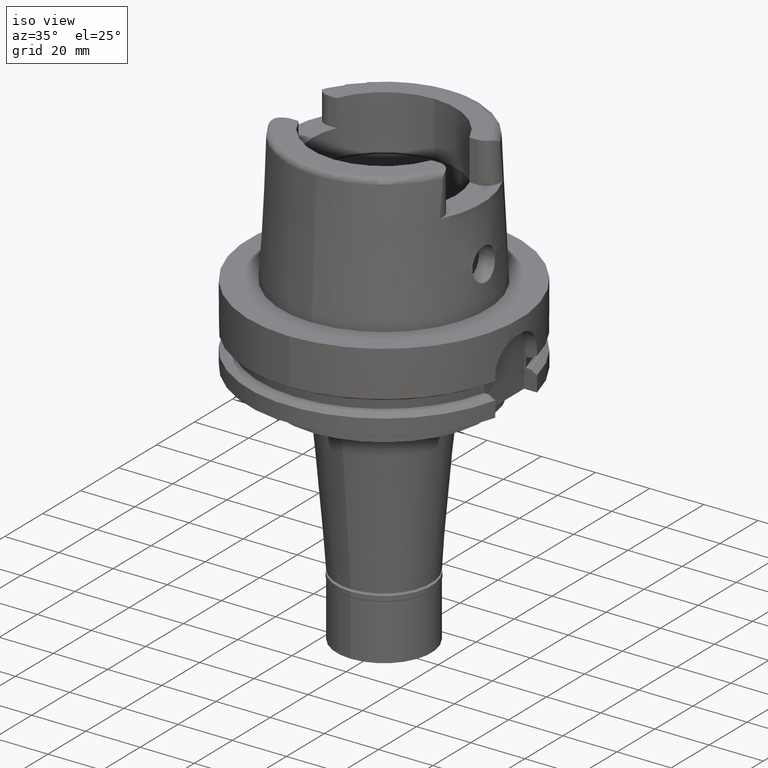
[diagram: clean part render]
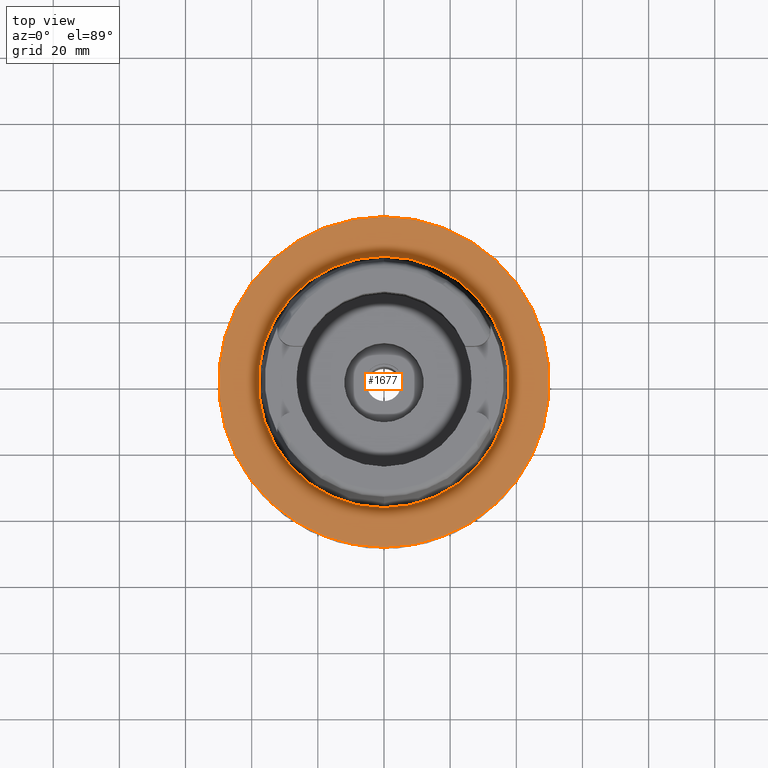
[diagram: tour spotlight — one face highlighted and labeled with its STEP entity id]
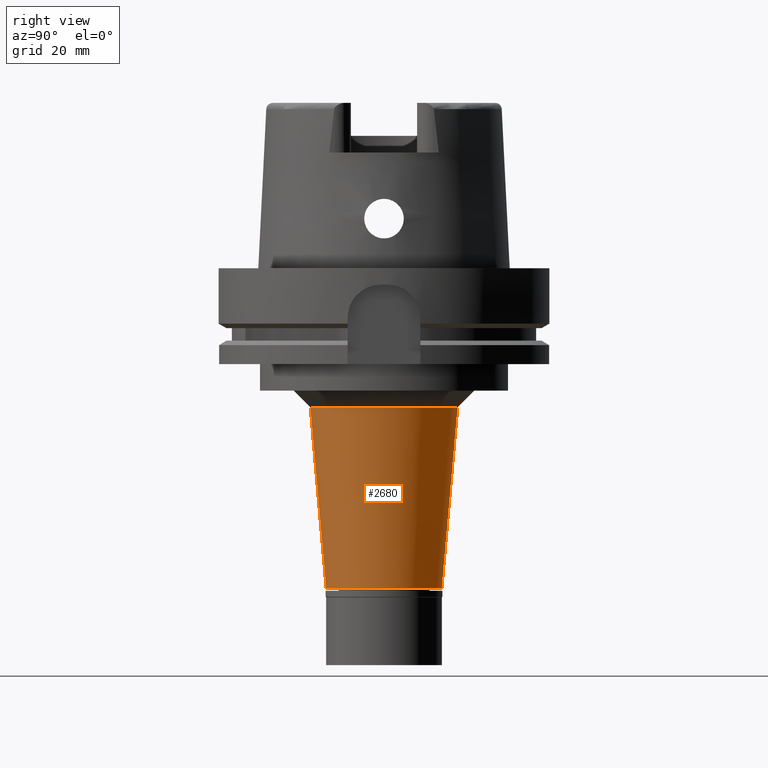
[diagram: tour spotlight — one face highlighted and labeled with its STEP entity id]
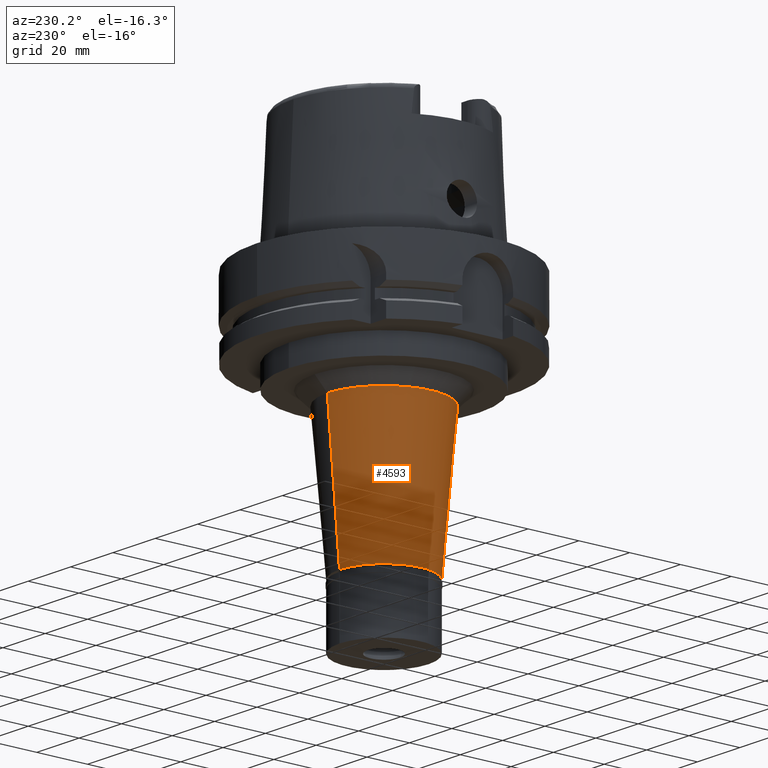
[diagram: tour spotlight — one face highlighted and labeled with its STEP entity id]
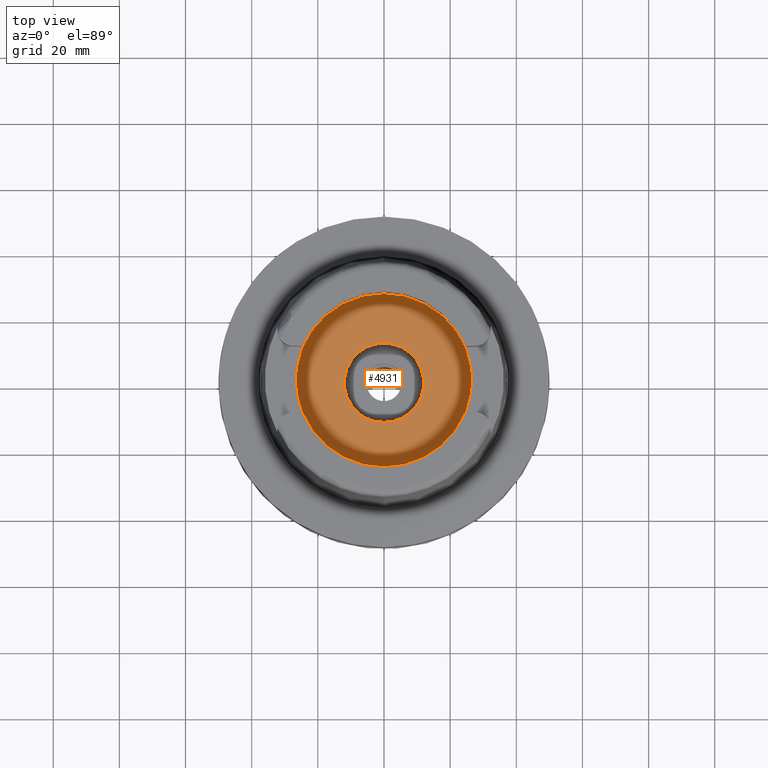
[diagram: tour spotlight — one face highlighted and labeled with its STEP entity id]
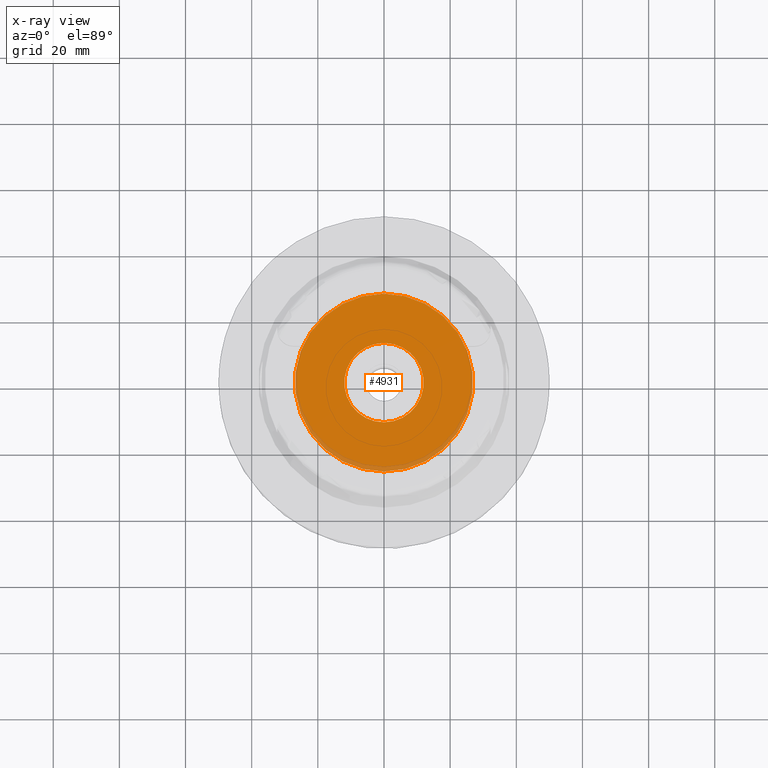
[diagram: x-ray of the same camera — body ghosted, this tour face saturated]
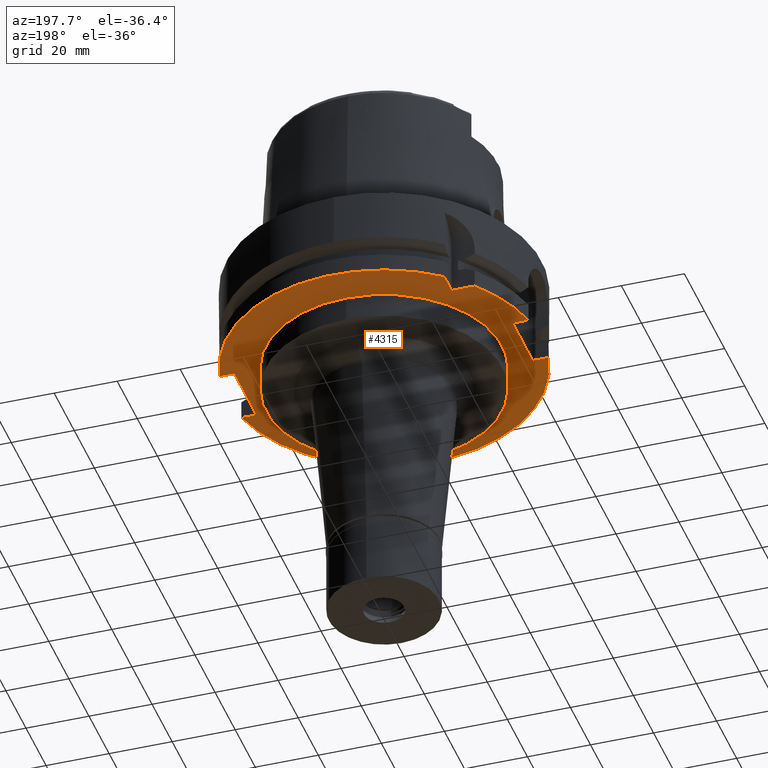
[diagram: tour spotlight — one face highlighted and labeled with its STEP entity id]
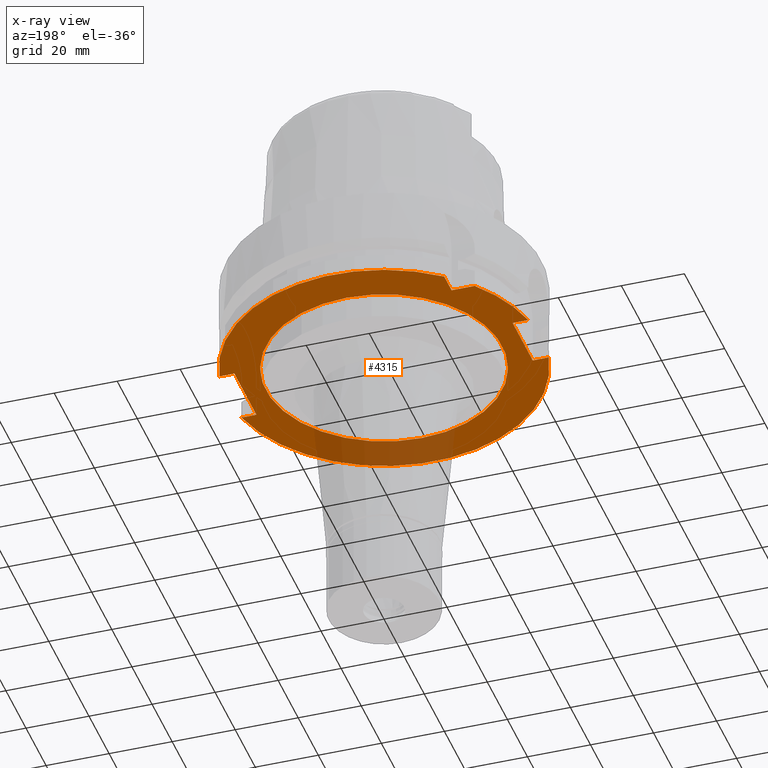
[diagram: x-ray of the same camera — body ghosted, this tour face saturated]
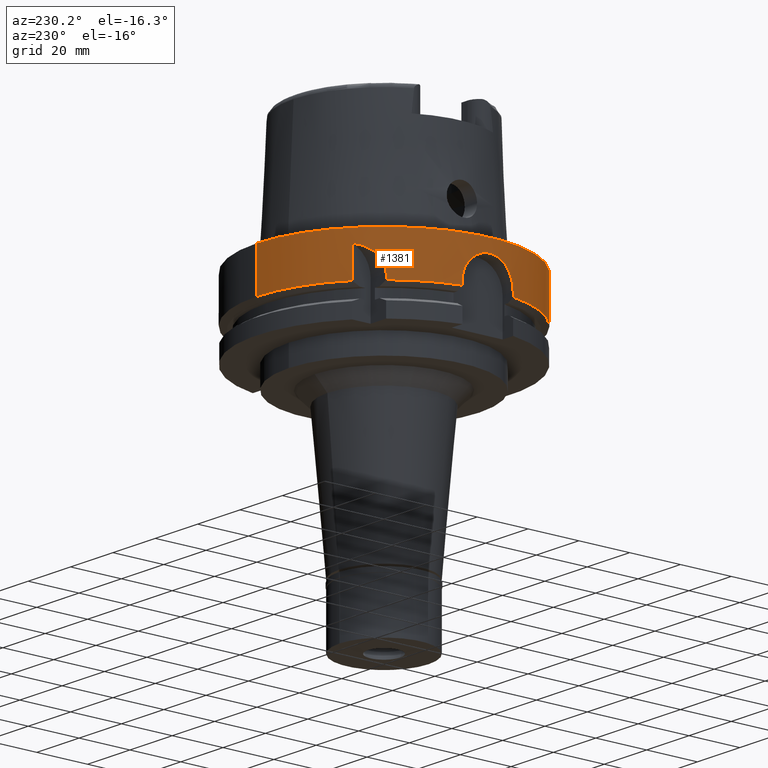
[diagram: tour spotlight — one face highlighted and labeled with its STEP entity id]
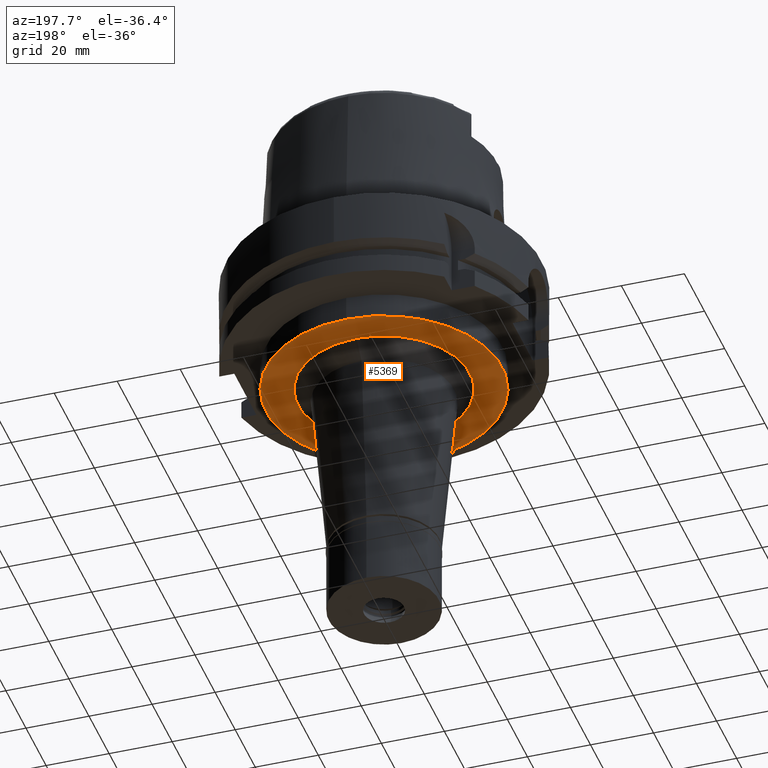
[diagram: tour spotlight — one face highlighted and labeled with its STEP entity id]
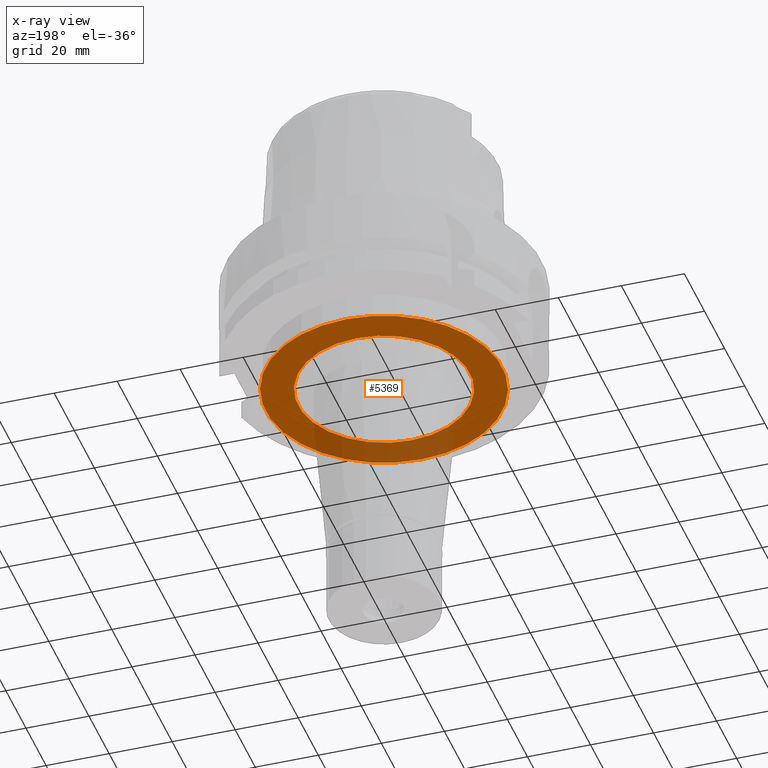
[diagram: x-ray of the same camera — body ghosted, this tour face saturated]
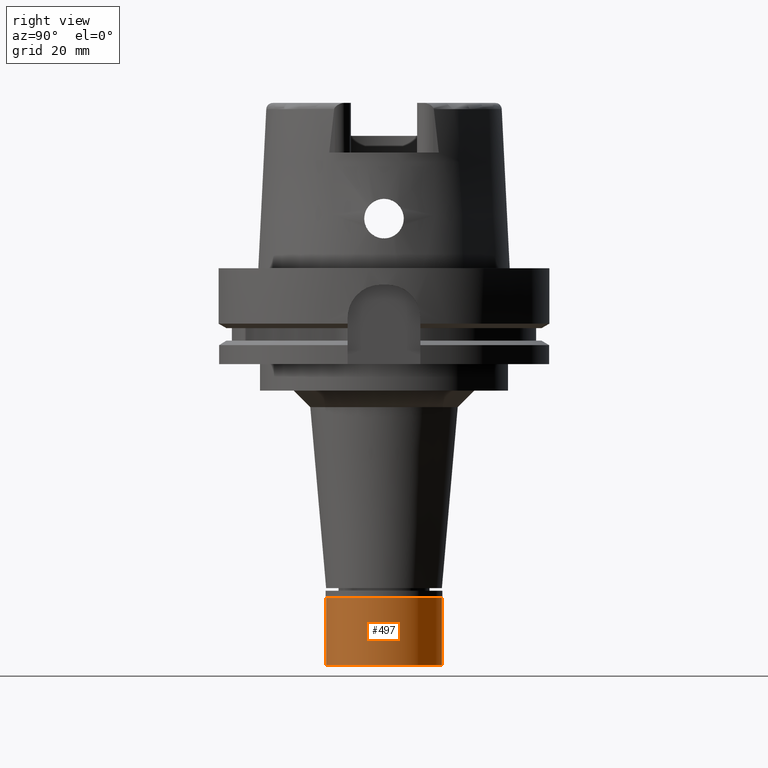
[diagram: tour spotlight — one face highlighted and labeled with its STEP entity id]
A machine part: a face-by-face anatomy tour. The part has 126 B-rep faces; the first image is the clean iso view, then the 8 largest visible faces are spotlighted one at a time (largest first), each with its STEP entity span.

Face 1 — top view, entity #1677. In plain terms, the highlighted planar face has unit normal (0, 0, 1).
Definition (entity closure, byte-faithful):
#257 = DIRECTION ( 'NONE',  ( 0.0000000000000000000, 0.0000000000000000000, 1.000000000000000000 ) ) ;
#283 = EDGE_CURVE ( 'NONE', #4401, #2018, #5490, .T. ) ;
#289 = CARTESIAN_POINT ( 'NONE',  ( 0.0000000000000000000, 0.0000000000000000000, 1.136868377215999875E-13 ) ) ;
#626 = EDGE_CURVE ( 'NONE', #3488, #3396, #2352, .T. ) ;
#937 = FACE_OUTER_BOUND ( 'NONE', #4064, .T. ) ;
#961 = DIRECTION ( 'NONE',  ( 1.000000000000000000, 0.0000000000000000000, 0.0000000000000000000 ) ) ;
#1001 = AXIS2_PLACEMENT_3D ( 'NONE', #5105, #5131, #4624 ) ;
#1068 = EDGE_CURVE ( 'NONE', #3396, #3488, #1793, .T. ) ;
#1311 = CARTESIAN_POINT ( 'NONE',  ( 0.0000000000000000000, -50.00000000000000000, 1.136868377215999875E-13 ) ) ;
#1383 = CIRCLE ( 'NONE', #2471, 38.00001658251999714 ) ;
#1461 = ORIENTED_EDGE ( 'NONE', *, *, #1068, .F. ) ;
#1502 = EDGE_LOOP ( 'NONE', ( #1982, #4262 ) ) ;
#1539 = CARTESIAN_POINT ( 'NONE',  ( 0.0000000000000000000, 38.00001658251999714, 1.023181539494999863E-12 ) ) ;
#1619 = CARTESIAN_POINT ( 'NONE',  ( 0.0000000000000000000, 0.0000000000000000000, 1.136868377215999875E-13 ) ) ;
#1677 = ADVANCED_FACE ( 'NONE', ( #937, #2659 ), #5225, .T. ) ;
#1793 = CIRCLE ( 'NONE', #5521, 50.00000000000000000 ) ;
#1982 = ORIENTED_EDGE ( 'NONE', *, *, #283, .F. ) ;
#2015 = DIRECTION ( 'NONE',  ( 0.0000000000000000000, 0.0000000000000000000, -1.000000000000000000 ) ) ;
#2018 = VERTEX_POINT ( 'NONE', #4912 ) ;
#2167 = AXIS2_PLACEMENT_3D ( 'NONE', #3985, #4381, #961 ) ;
#2352 = CIRCLE ( 'NONE', #3602, 50.00000000000000000 ) ;
#2471 = AXIS2_PLACEMENT_3D ( 'NONE', #4042, #257, #4070 ) ;
#2531 = DIRECTION ( 'NONE',  ( 0.0000000000000000000, 0.0000000000000000000, -1.000000000000000000 ) ) ;
#2659 = FACE_BOUND ( 'NONE', #1502, .T. ) ;
#2850 = DIRECTION ( 'NONE',  ( 0.0000000000000000000, 1.000000000000000000, 0.0000000000000000000 ) ) ;
#3396 = VERTEX_POINT ( 'NONE', #5452 ) ;
#3488 = VERTEX_POINT ( 'NONE', #1311 ) ;
#3602 = AXIS2_PLACEMENT_3D ( 'NONE', #289, #2015, #3718 ) ;
#3718 = DIRECTION ( 'NONE',  ( 0.0000000000000000000, -1.000000000000000000, 0.0000000000000000000 ) ) ;
#3985 = CARTESIAN_POINT ( 'NONE',  ( 0.0000000000000000000, 0.0000000000000000000, 1.421085471519999843E-14 ) ) ;
#4042 = CARTESIAN_POINT ( 'NONE',  ( 0.0000000000000000000, 0.0000000000000000000, 1.023181539494999863E-12 ) ) ;
#4064 = EDGE_LOOP ( 'NONE', ( #1461, #4696 ) ) ;
#4070 = DIRECTION ( 'NONE',  ( 0.0000000000000000000, -1.000000000000000000, 0.0000000000000000000 ) ) ;
#4262 = ORIENTED_EDGE ( 'NONE', *, *, #4726, .F. ) ;
#4381 = DIRECTION ( 'NONE',  ( 0.0000000000000000000, 0.0000000000000000000, 1.000000000000000000 ) ) ;
#4401 = VERTEX_POINT ( 'NONE', #1539 ) ;
#4624 = DIRECTION ( 'NONE',  ( 0.0000000000000000000, 1.000000000000000000, 0.0000000000000000000 ) ) ;
#4696 = ORIENTED_EDGE ( 'NONE', *, *, #626, .F. ) ;
#4726 = EDGE_CURVE ( 'NONE', #2018, #4401, #1383, .T. ) ;
#4912 = CARTESIAN_POINT ( 'NONE',  ( 0.0000000000000000000, -38.00001658251999714, 6.892264536873000076E-13 ) ) ;
#5105 = CARTESIAN_POINT ( 'NONE',  ( 0.0000000000000000000, 0.0000000000000000000, 1.023181539494999863E-12 ) ) ;
#5131 = DIRECTION ( 'NONE',  ( 0.0000000000000000000, 0.0000000000000000000, 1.000000000000000000 ) ) ;
#5225 = PLANE ( 'NONE',  #2167 ) ;
#5452 = CARTESIAN_POINT ( 'NONE',  ( 0.0000000000000000000, 50.00000000000000000, 8.052817671947998165E-14 ) ) ;
#5490 = CIRCLE ( 'NONE', #1001, 38.00001658251999714 ) ;
#5521 = AXIS2_PLACEMENT_3D ( 'NONE', #1619, #2531, #2850 ) ;

Face 2 — right view, entity #2680. In plain terms, the highlighted conical surface has half-angle 5 deg.
Definition (entity closure, byte-faithful):
#376 = DIRECTION ( 'NONE',  ( 0.0000000000000000000, 0.0000000000000000000, 1.000000000000000000 ) ) ;
#675 = VERTEX_POINT ( 'NONE', #3279 ) ;
#709 = ORIENTED_EDGE ( 'NONE', *, *, #3049, .F. ) ;
#775 = AXIS2_PLACEMENT_3D ( 'NONE', #3501, #2644, #4335 ) ;
#839 = LINE ( 'NONE', #2553, #953 ) ;
#953 = VECTOR ( 'NONE', #4249, 1000.000000000000000 ) ;
#1211 = CARTESIAN_POINT ( 'NONE',  ( 0.0000000000000000000, -22.28562989487000223, -42.00000000000000000 ) ) ;
#1463 = VERTEX_POINT ( 'NONE', #1211 ) ;
#1617 = VERTEX_POINT ( 'NONE', #5252 ) ;
#1771 = CARTESIAN_POINT ( 'NONE',  ( 0.0000000000000000000, -22.28562989487000223, -42.00000000000000000 ) ) ;
#2037 = AXIS2_PLACEMENT_3D ( 'NONE', #4996, #376, #4115 ) ;
#2236 = VERTEX_POINT ( 'NONE', #3403 ) ;
#2296 = VECTOR ( 'NONE', #3851, 1000.000000000000000 ) ;
#2484 = CIRCLE ( 'NONE', #775, 22.28562989486000134 ) ;
#2525 = DIRECTION ( 'NONE',  ( 0.0000000000000000000, 1.000000000000000000, 0.0000000000000000000 ) ) ;
#2553 = CARTESIAN_POINT ( 'NONE',  ( 0.0000000000000000000, 22.28562989487000223, -42.00000000000000000 ) ) ;
#2644 = DIRECTION ( 'NONE',  ( 0.0000000000000000000, 0.0000000000000000000, 1.000000000000000000 ) ) ;
#2665 = ORIENTED_EDGE ( 'NONE', *, *, #2816, .T. ) ;
#2680 = ADVANCED_FACE ( 'NONE', ( #4539 ), #4080, .T. ) ;
#2744 = EDGE_LOOP ( 'NONE', ( #4896, #5185, #2665, #709 ) ) ;
#2816 = EDGE_CURVE ( 'NONE', #675, #2236, #4633, .T. ) ;
#3049 = EDGE_CURVE ( 'NONE', #1617, #2236, #839, .T. ) ;
#3225 = EDGE_CURVE ( 'NONE', #1463, #675, #4719, .T. ) ;
#3279 = CARTESIAN_POINT ( 'NONE',  ( 0.0000000000000000000, -17.50000000000000000, -96.69999999999998863 ) ) ;
#3403 = CARTESIAN_POINT ( 'NONE',  ( 0.0000000000000000000, 17.50000000000000000, -96.69999999999998863 ) ) ;
#3501 = CARTESIAN_POINT ( 'NONE',  ( 0.0000000000000000000, 0.0000000000000000000, -42.00000000000000000 ) ) ;
#3785 = DIRECTION ( 'NONE',  ( 0.0000000000000000000, 0.0000000000000000000, 1.000000000000000000 ) ) ;
#3851 = DIRECTION ( 'NONE',  ( 0.0000000000000000000, 0.08715574274769373464, -0.9961946980917424366 ) ) ;
#4080 = CONICAL_SURFACE ( 'NONE', #5165, 19.89281494743000067, 0.08726646259969973729 ) ;
#4115 = DIRECTION ( 'NONE',  ( 0.0000000000000000000, -1.000000000000000000, 0.0000000000000000000 ) ) ;
#4249 = DIRECTION ( 'NONE',  ( 0.0000000000000000000, -0.08715574274769373464, -0.9961946980917424366 ) ) ;
#4335 = DIRECTION ( 'NONE',  ( 0.0000000000000000000, -1.000000000000000000, 0.0000000000000000000 ) ) ;
#4539 = FACE_OUTER_BOUND ( 'NONE', #2744, .T. ) ;
#4598 = CARTESIAN_POINT ( 'NONE',  ( 0.0000000000000000000, 0.0000000000000000000, -69.34999999999999432 ) ) ;
#4633 = CIRCLE ( 'NONE', #2037, 17.50000000000000000 ) ;
#4719 = LINE ( 'NONE', #1771, #2296 ) ;
#4896 = ORIENTED_EDGE ( 'NONE', *, *, #5509, .F. ) ;
#4996 = CARTESIAN_POINT ( 'NONE',  ( 0.0000000000000000000, 0.0000000000000000000, -96.69999999999998863 ) ) ;
#5165 = AXIS2_PLACEMENT_3D ( 'NONE', #4598, #3785, #2525 ) ;
#5185 = ORIENTED_EDGE ( 'NONE', *, *, #3225, .T. ) ;
#5252 = CARTESIAN_POINT ( 'NONE',  ( 0.0000000000000000000, 22.28562989487000223, -42.00000000000000000 ) ) ;
#5509 = EDGE_CURVE ( 'NONE', #1463, #1617, #2484, .T. ) ;

Face 3 — auxiliary view, entity #4593. In plain terms, the highlighted conical surface has half-angle 5 deg.
Definition (entity closure, byte-faithful):
#34 = DIRECTION ( 'NONE',  ( 0.0000000000000000000, 1.000000000000000000, 0.0000000000000000000 ) ) ;
#574 = AXIS2_PLACEMENT_3D ( 'NONE', #5227, #4382, #34 ) ;
#675 = VERTEX_POINT ( 'NONE', #3279 ) ;
#839 = LINE ( 'NONE', #2553, #953 ) ;
#899 = AXIS2_PLACEMENT_3D ( 'NONE', #4873, #4391, #1416 ) ;
#919 = EDGE_CURVE ( 'NONE', #1463, #1617, #4118, .T. ) ;
#953 = VECTOR ( 'NONE', #4249, 1000.000000000000000 ) ;
#958 = ORIENTED_EDGE ( 'NONE', *, *, #919, .T. ) ;
#1211 = CARTESIAN_POINT ( 'NONE',  ( 0.0000000000000000000, -22.28562989487000223, -42.00000000000000000 ) ) ;
#1416 = DIRECTION ( 'NONE',  ( 0.0000000000000000000, -1.000000000000000000, 0.0000000000000000000 ) ) ;
#1463 = VERTEX_POINT ( 'NONE', #1211 ) ;
#1617 = VERTEX_POINT ( 'NONE', #5252 ) ;
#1771 = CARTESIAN_POINT ( 'NONE',  ( 0.0000000000000000000, -22.28562989487000223, -42.00000000000000000 ) ) ;
#1955 = CIRCLE ( 'NONE', #2405, 17.50000000000000000 ) ;
#2236 = VERTEX_POINT ( 'NONE', #3403 ) ;
#2296 = VECTOR ( 'NONE', #3851, 1000.000000000000000 ) ;
#2405 = AXIS2_PLACEMENT_3D ( 'NONE', #4965, #5414, #3319 ) ;
#2553 = CARTESIAN_POINT ( 'NONE',  ( 0.0000000000000000000, 22.28562989487000223, -42.00000000000000000 ) ) ;
#2818 = ORIENTED_EDGE ( 'NONE', *, *, #3868, .T. ) ;
#2864 = ORIENTED_EDGE ( 'NONE', *, *, #3049, .T. ) ;
#3049 = EDGE_CURVE ( 'NONE', #1617, #2236, #839, .T. ) ;
#3225 = EDGE_CURVE ( 'NONE', #1463, #675, #4719, .T. ) ;
#3279 = CARTESIAN_POINT ( 'NONE',  ( 0.0000000000000000000, -17.50000000000000000, -96.69999999999998863 ) ) ;
#3319 = DIRECTION ( 'NONE',  ( 0.0000000000000000000, 1.000000000000000000, 0.0000000000000000000 ) ) ;
#3388 = ORIENTED_EDGE ( 'NONE', *, *, #3225, .F. ) ;
#3403 = CARTESIAN_POINT ( 'NONE',  ( 0.0000000000000000000, 17.50000000000000000, -96.69999999999998863 ) ) ;
#3851 = DIRECTION ( 'NONE',  ( 0.0000000000000000000, 0.08715574274769373464, -0.9961946980917424366 ) ) ;
#3868 = EDGE_CURVE ( 'NONE', #2236, #675, #1955, .T. ) ;
#4118 = CIRCLE ( 'NONE', #899, 22.28562989487000223 ) ;
#4249 = DIRECTION ( 'NONE',  ( 0.0000000000000000000, -0.08715574274769373464, -0.9961946980917424366 ) ) ;
#4382 = DIRECTION ( 'NONE',  ( 0.0000000000000000000, 0.0000000000000000000, 1.000000000000000000 ) ) ;
#4391 = DIRECTION ( 'NONE',  ( 0.0000000000000000000, 0.0000000000000000000, -1.000000000000000000 ) ) ;
#4593 = ADVANCED_FACE ( 'NONE', ( #5207 ), #4797, .T. ) ;
#4719 = LINE ( 'NONE', #1771, #2296 ) ;
#4797 = CONICAL_SURFACE ( 'NONE', #574, 19.89281494743000067, 0.08726646259969973729 ) ;
#4873 = CARTESIAN_POINT ( 'NONE',  ( 0.0000000000000000000, 0.0000000000000000000, -42.00000000000000000 ) ) ;
#4965 = CARTESIAN_POINT ( 'NONE',  ( 0.0000000000000000000, 0.0000000000000000000, -96.69999999999998863 ) ) ;
#5069 = EDGE_LOOP ( 'NONE', ( #2818, #3388, #958, #2864 ) ) ;
#5207 = FACE_OUTER_BOUND ( 'NONE', #5069, .T. ) ;
#5227 = CARTESIAN_POINT ( 'NONE',  ( 0.0000000000000000000, 0.0000000000000000000, -69.34999999999999432 ) ) ;
#5252 = CARTESIAN_POINT ( 'NONE',  ( 0.0000000000000000000, 22.28562989487000223, -42.00000000000000000 ) ) ;
#5414 = DIRECTION ( 'NONE',  ( 0.0000000000000000000, 0.0000000000000000000, 1.000000000000000000 ) ) ;

Face 4 — top view, entity #4931. An x-ray twin of the same camera follows (body ghosted, this face saturated) — the face is partly hidden behind the body. In plain terms, the highlighted planar face has unit normal (0, 0, 1).
Definition (entity closure, byte-faithful):
#175 = EDGE_CURVE ( 'NONE', #5552, #4495, #3694, .T. ) ;
#308 = PLANE ( 'NONE',  #2028 ) ;
#422 = CARTESIAN_POINT ( 'NONE',  ( 0.0000000000000000000, 0.0000000000000000000, -12.44999999999999929 ) ) ;
#580 = ORIENTED_EDGE ( 'NONE', *, *, #2014, .F. ) ;
#671 = AXIS2_PLACEMENT_3D ( 'NONE', #1950, #5368, #3246 ) ;
#857 = CIRCLE ( 'NONE', #671, 26.89999999999999858 ) ;
#882 = VERTEX_POINT ( 'NONE', #3606 ) ;
#971 = CARTESIAN_POINT ( 'NONE',  ( 0.0000000000000000000, 26.89999999999999858, -12.44999999999999929 ) ) ;
#1088 = AXIS2_PLACEMENT_3D ( 'NONE', #1191, #1532, #2931 ) ;
#1181 = DIRECTION ( 'NONE',  ( 0.0000000000000000000, 0.0000000000000000000, 1.000000000000000000 ) ) ;
#1191 = CARTESIAN_POINT ( 'NONE',  ( 0.0000000000000000000, 0.0000000000000000000, -12.44999999999999929 ) ) ;
#1395 = AXIS2_PLACEMENT_3D ( 'NONE', #422, #4748, #2572 ) ;
#1532 = DIRECTION ( 'NONE',  ( 0.0000000000000000000, 0.0000000000000000000, -1.000000000000000000 ) ) ;
#1950 = CARTESIAN_POINT ( 'NONE',  ( 0.0000000000000000000, 0.0000000000000000000, -12.44999999999999929 ) ) ;
#1989 = EDGE_LOOP ( 'NONE', ( #4831, #4752 ) ) ;
#2014 = EDGE_CURVE ( 'NONE', #882, #5503, #5394, .T. ) ;
#2028 = AXIS2_PLACEMENT_3D ( 'NONE', #2487, #1181, #2916 ) ;
#2242 = CARTESIAN_POINT ( 'NONE',  ( 0.0000000000000000000, -12.00000000000000000, -12.44999999999999929 ) ) ;
#2487 = CARTESIAN_POINT ( 'NONE',  ( 0.0000000000000000000, 0.0000000000000000000, -12.44999999999999929 ) ) ;
#2563 = CARTESIAN_POINT ( 'NONE',  ( 0.0000000000000000000, -26.89999999999999858, -12.44999999999999929 ) ) ;
#2572 = DIRECTION ( 'NONE',  ( 0.0000000000000000000, -1.000000000000000000, 0.0000000000000000000 ) ) ;
#2916 = DIRECTION ( 'NONE',  ( 1.000000000000000000, 0.0000000000000000000, 0.0000000000000000000 ) ) ;
#2931 = DIRECTION ( 'NONE',  ( 0.0000000000000000000, 1.000000000000000000, 0.0000000000000000000 ) ) ;
#2946 = FACE_BOUND ( 'NONE', #3401, .T. ) ;
#3178 = EDGE_CURVE ( 'NONE', #5503, #882, #4897, .T. ) ;
#3236 = DIRECTION ( 'NONE',  ( 0.0000000000000000000, 0.0000000000000000000, 1.000000000000000000 ) ) ;
#3246 = DIRECTION ( 'NONE',  ( 0.0000000000000000000, -1.000000000000000000, 0.0000000000000000000 ) ) ;
#3401 = EDGE_LOOP ( 'NONE', ( #580, #3660 ) ) ;
#3586 = DIRECTION ( 'NONE',  ( 0.0000000000000000000, 1.000000000000000000, 0.0000000000000000000 ) ) ;
#3606 = CARTESIAN_POINT ( 'NONE',  ( 0.0000000000000000000, 12.00000000000000000, -12.44999999999999929 ) ) ;
#3660 = ORIENTED_EDGE ( 'NONE', *, *, #3178, .F. ) ;
#3694 = CIRCLE ( 'NONE', #1088, 26.89999999999999858 ) ;
#4484 = CARTESIAN_POINT ( 'NONE',  ( 0.0000000000000000000, 0.0000000000000000000, -12.44999999999999929 ) ) ;
#4488 = AXIS2_PLACEMENT_3D ( 'NONE', #4484, #3236, #3586 ) ;
#4495 = VERTEX_POINT ( 'NONE', #2563 ) ;
#4540 = EDGE_CURVE ( 'NONE', #4495, #5552, #857, .T. ) ;
#4748 = DIRECTION ( 'NONE',  ( 0.0000000000000000000, 0.0000000000000000000, 1.000000000000000000 ) ) ;
#4752 = ORIENTED_EDGE ( 'NONE', *, *, #4540, .F. ) ;
#4831 = ORIENTED_EDGE ( 'NONE', *, *, #175, .F. ) ;
#4897 = CIRCLE ( 'NONE', #1395, 12.00000000000000000 ) ;
#4931 = ADVANCED_FACE ( 'NONE', ( #5067, #2946 ), #308, .T. ) ;
#5067 = FACE_OUTER_BOUND ( 'NONE', #1989, .T. ) ;
#5368 = DIRECTION ( 'NONE',  ( 0.0000000000000000000, 0.0000000000000000000, -1.000000000000000000 ) ) ;
#5394 = CIRCLE ( 'NONE', #4488, 12.00000000000000000 ) ;
#5503 = VERTEX_POINT ( 'NONE', #2242 ) ;
#5552 = VERTEX_POINT ( 'NONE', #971 ) ;

Face 5 — auxiliary view, entity #4315. An x-ray twin of the same camera follows (body ghosted, this face saturated) — the face is partly hidden behind the body. In plain terms, the highlighted planar face has unit normal (0, 0, 1).
Definition (entity closure, byte-faithful):
#96 = DIRECTION ( 'NONE',  ( 0.0000000000000000000, 1.000000000000000000, 0.0000000000000000000 ) ) ;
#135 = ORIENTED_EDGE ( 'NONE', *, *, #2273, .F. ) ;
#207 = DIRECTION ( 'NONE',  ( 1.000000000000000000, 1.711257052401000108E-14, 0.0000000000000000000 ) ) ;
#209 = ORIENTED_EDGE ( 'NONE', *, *, #3658, .T. ) ;
#242 = DIRECTION ( 'NONE',  ( 0.0000000000000000000, 1.000000000000000000, 0.0000000000000000000 ) ) ;
#292 = EDGE_LOOP ( 'NONE', ( #1783, #544 ) ) ;
#310 = ORIENTED_EDGE ( 'NONE', *, *, #5548, .F. ) ;
#332 = FACE_OUTER_BOUND ( 'NONE', #2654, .T. ) ;
#334 = VERTEX_POINT ( 'NONE', #1303 ) ;
#345 = VERTEX_POINT ( 'NONE', #5527 ) ;
#358 = CARTESIAN_POINT ( 'NONE',  ( 0.0000000000000000000, 0.0000000000000000000, -29.00000000000000000 ) ) ;
#507 = CARTESIAN_POINT ( 'NONE',  ( 0.0000000000000000000, 37.50000000000000000, -29.00000000000000000 ) ) ;
#544 = ORIENTED_EDGE ( 'NONE', *, *, #2997, .F. ) ;
#578 = VECTOR ( 'NONE', #4127, 1000.000000000000000 ) ;
#641 = CARTESIAN_POINT ( 'NONE',  ( 44.00000000000000000, 11.00000000000000000, -29.00000000000000000 ) ) ;
#705 = CARTESIAN_POINT ( 'NONE',  ( -44.00000000000000000, 10.00000000000000000, -29.00000000000000000 ) ) ;
#792 = DIRECTION ( 'NONE',  ( 4.798503851105999980E-14, 1.000000000000000000, 0.0000000000000000000 ) ) ;
#876 = EDGE_CURVE ( 'NONE', #1937, #4695, #3331, .T. ) ;
#985 = VECTOR ( 'NONE', #1675, 1000.000000000000000 ) ;
#1066 = ORIENTED_EDGE ( 'NONE', *, *, #4331, .T. ) ;
#1120 = CARTESIAN_POINT ( 'NONE',  ( -31.50000000000000000, 31.50000000000000000, -29.00000000000000000 ) ) ;
#1226 = CIRCLE ( 'NONE', #4727, 50.00000000000000000 ) ;
#1303 = CARTESIAN_POINT ( 'NONE',  ( -31.50000000000000000, 38.82975663071000128, -29.00000000000000000 ) ) ;
#1322 = VERTEX_POINT ( 'NONE', #1438 ) ;
#1346 = VERTEX_POINT ( 'NONE', #4412 ) ;
#1363 = CARTESIAN_POINT ( 'NONE',  ( 0.0000000000000000000, 0.0000000000000000000, -29.00000000000000000 ) ) ;
#1386 = LINE ( 'NONE', #4821, #2397 ) ;
#1402 = ORIENTED_EDGE ( 'NONE', *, *, #4424, .T. ) ;
#1404 = AXIS2_PLACEMENT_3D ( 'NONE', #2414, #4506, #242 ) ;
#1419 = EDGE_CURVE ( 'NONE', #2194, #4188, #3817, .T. ) ;
#1438 = CARTESIAN_POINT ( 'NONE',  ( -31.50000000000000000, 31.50000000000000000, -29.00000000000000000 ) ) ;
#1472 = LINE ( 'NONE', #3527, #2951 ) ;
#1495 = CARTESIAN_POINT ( 'NONE',  ( 48.77499359303000404, -11.00000000000000000, -29.00000000000000000 ) ) ;
#1568 = CARTESIAN_POINT ( 'NONE',  ( -44.00000000000000000, -10.00000000000000000, -29.00000000000000000 ) ) ;
#1632 = ORIENTED_EDGE ( 'NONE', *, *, #4020, .F. ) ;
#1637 = CARTESIAN_POINT ( 'NONE',  ( 0.0000000000000000000, 0.0000000000000000000, -29.00000000000000000 ) ) ;
#1643 = VERTEX_POINT ( 'NONE', #2203 ) ;
#1667 = DIRECTION ( 'NONE',  ( 0.0000000000000000000, 0.0000000000000000000, 1.000000000000000000 ) ) ;
#1675 = DIRECTION ( 'NONE',  ( -1.000000000000000000, 4.627973610177000155E-14, 0.0000000000000000000 ) ) ;
#1766 = CIRCLE ( 'NONE', #1404, 50.00000000000000000 ) ;
#1770 = VECTOR ( 'NONE', #792, 1000.000000000000000 ) ;
#1783 = ORIENTED_EDGE ( 'NONE', *, *, #876, .F. ) ;
#1789 = DIRECTION ( 'NONE',  ( 0.0000000000000000000, 0.0000000000000000000, -1.000000000000000000 ) ) ;
#1937 = VERTEX_POINT ( 'NONE', #507 ) ;
#2046 = CIRCLE ( 'NONE', #2766, 50.00000000000000711 ) ;
#2052 = DIRECTION ( 'NONE',  ( 0.0000000000000000000, 0.0000000000000000000, 1.000000000000000000 ) ) ;
#2114 = EDGE_CURVE ( 'NONE', #4182, #345, #4094, .T. ) ;
#2194 = VERTEX_POINT ( 'NONE', #705 ) ;
#2203 = CARTESIAN_POINT ( 'NONE',  ( 48.77499359303000404, 11.00000000000000000, -29.00000000000000000 ) ) ;
#2273 = EDGE_CURVE ( 'NONE', #4182, #1643, #2507, .T. ) ;
#2330 = DIRECTION ( 'NONE',  ( 0.0000000000000000000, -1.000000000000000000, 0.0000000000000000000 ) ) ;
#2397 = VECTOR ( 'NONE', #3925, 1000.000000000000000 ) ;
#2414 = CARTESIAN_POINT ( 'NONE',  ( 0.0000000000000000000, 0.0000000000000000000, -29.00000000000000000 ) ) ;
#2475 = CARTESIAN_POINT ( 'NONE',  ( 44.00000000000000000, 11.00000000000000000, -29.00000000000000000 ) ) ;
#2482 = VECTOR ( 'NONE', #4122, 1000.000000000000000 ) ;
#2507 = LINE ( 'NONE', #2475, #2482 ) ;
#2511 = ORIENTED_EDGE ( 'NONE', *, *, #5385, .F. ) ;
#2654 = EDGE_LOOP ( 'NONE', ( #1632, #135, #5379, #209, #5402, #2511, #1402, #5272, #3906, #310, #1066 ) ) ;
#2669 = AXIS2_PLACEMENT_3D ( 'NONE', #3069, #4765, #4281 ) ;
#2715 = VECTOR ( 'NONE', #2330, 1000.000000000000000 ) ;
#2766 = AXIS2_PLACEMENT_3D ( 'NONE', #1637, #1667, #3836 ) ;
#2871 = CARTESIAN_POINT ( 'NONE',  ( 44.00000000000000000, 11.00000000000000000, -29.00000000000000000 ) ) ;
#2882 = PLANE ( 'NONE',  #4732 ) ;
#2909 = DIRECTION ( 'NONE',  ( 0.0000000000000000000, 0.0000000000000000000, 1.000000000000000000 ) ) ;
#2951 = VECTOR ( 'NONE', #207, 1000.000000000000000 ) ;
#2997 = EDGE_CURVE ( 'NONE', #4695, #1937, #4541, .T. ) ;
#3063 = CARTESIAN_POINT ( 'NONE',  ( 0.0000000000000000000, -37.50000000000000000, -29.00000000000000000 ) ) ;
#3069 = CARTESIAN_POINT ( 'NONE',  ( 0.0000000000000000000, 0.0000000000000000000, -29.00000000000000000 ) ) ;
#3188 = VECTOR ( 'NONE', #5007, 1000.000000000000000 ) ;
#3267 = FACE_BOUND ( 'NONE', #292, .T. ) ;
#3290 = CARTESIAN_POINT ( 'NONE',  ( -38.82975663071000128, 31.50000000000000000, -29.00000000000000000 ) ) ;
#3327 = DIRECTION ( 'NONE',  ( 1.000000000000000000, 0.0000000000000000000, 0.0000000000000000000 ) ) ;
#3331 = CIRCLE ( 'NONE', #4387, 37.50000000000000000 ) ;
#3411 = VERTEX_POINT ( 'NONE', #3706 ) ;
#3527 = CARTESIAN_POINT ( 'NONE',  ( 44.00000000000000000, -11.00000000000000000, -29.00000000000000000 ) ) ;
#3658 = EDGE_CURVE ( 'NONE', #345, #4826, #1472, .T. ) ;
#3670 = CARTESIAN_POINT ( 'NONE',  ( 0.0000000000000000000, 0.0000000000000000000, -29.00000000000000000 ) ) ;
#3706 = CARTESIAN_POINT ( 'NONE',  ( -44.00000000000000000, -10.00000000000000000, -29.00000000000000000 ) ) ;
#3817 = LINE ( 'NONE', #5535, #985 ) ;
#3836 = DIRECTION ( 'NONE',  ( -0.7765951326141738997, 0.6299999999999789102, 0.0000000000000000000 ) ) ;
#3843 = VERTEX_POINT ( 'NONE', #3290 ) ;
#3858 = EDGE_CURVE ( 'NONE', #1346, #4826, #1226, .T. ) ;
#3906 = ORIENTED_EDGE ( 'NONE', *, *, #4220, .F. ) ;
#3925 = DIRECTION ( 'NONE',  ( -1.000000000000000000, -4.798503851105999980E-14, 0.0000000000000000000 ) ) ;
#4020 = EDGE_CURVE ( 'NONE', #1643, #334, #1766, .T. ) ;
#4094 = LINE ( 'NONE', #641, #2715 ) ;
#4122 = DIRECTION ( 'NONE',  ( 1.000000000000000000, -1.785659532940000023E-14, 0.0000000000000000000 ) ) ;
#4127 = DIRECTION ( 'NONE',  ( -1.000000000000000000, -4.627973610177000155E-14, 0.0000000000000000000 ) ) ;
#4155 = CARTESIAN_POINT ( 'NONE',  ( -44.00000000000000000, -10.00000000000000000, -29.00000000000000000 ) ) ;
#4171 = DIRECTION ( 'NONE',  ( 0.0000000000000000000, -1.000000000000000000, 0.0000000000000000000 ) ) ;
#4179 = LINE ( 'NONE', #1120, #1770 ) ;
#4180 = LINE ( 'NONE', #4155, #578 ) ;
#4182 = VERTEX_POINT ( 'NONE', #2871 ) ;
#4188 = VERTEX_POINT ( 'NONE', #5378 ) ;
#4220 = EDGE_CURVE ( 'NONE', #3843, #4188, #2046, .T. ) ;
#4281 = DIRECTION ( 'NONE',  ( 0.0000000000000000000, -1.000000000000000000, 0.0000000000000000000 ) ) ;
#4315 = ADVANCED_FACE ( 'NONE', ( #332, #3267 ), #2882, .F. ) ;
#4331 = EDGE_CURVE ( 'NONE', #1322, #334, #4179, .T. ) ;
#4387 = AXIS2_PLACEMENT_3D ( 'NONE', #1363, #1789, #96 ) ;
#4412 = CARTESIAN_POINT ( 'NONE',  ( -48.98979485565999425, -10.00000000000000000, -29.00000000000000000 ) ) ;
#4424 = EDGE_CURVE ( 'NONE', #3411, #2194, #5421, .T. ) ;
#4506 = DIRECTION ( 'NONE',  ( 0.0000000000000000000, 0.0000000000000000000, 1.000000000000000000 ) ) ;
#4541 = CIRCLE ( 'NONE', #2669, 37.50000000000000000 ) ;
#4695 = VERTEX_POINT ( 'NONE', #3063 ) ;
#4727 = AXIS2_PLACEMENT_3D ( 'NONE', #3670, #2052, #4171 ) ;
#4732 = AXIS2_PLACEMENT_3D ( 'NONE', #358, #2909, #3327 ) ;
#4765 = DIRECTION ( 'NONE',  ( 0.0000000000000000000, 0.0000000000000000000, -1.000000000000000000 ) ) ;
#4821 = CARTESIAN_POINT ( 'NONE',  ( -31.50000000000000000, 31.50000000000000000, -29.00000000000000000 ) ) ;
#4826 = VERTEX_POINT ( 'NONE', #1495 ) ;
#5007 = DIRECTION ( 'NONE',  ( 0.0000000000000000000, 1.000000000000000000, 0.0000000000000000000 ) ) ;
#5272 = ORIENTED_EDGE ( 'NONE', *, *, #1419, .T. ) ;
#5378 = CARTESIAN_POINT ( 'NONE',  ( -48.98979485565999425, 10.00000000000000000, -29.00000000000000000 ) ) ;
#5379 = ORIENTED_EDGE ( 'NONE', *, *, #2114, .T. ) ;
#5385 = EDGE_CURVE ( 'NONE', #3411, #1346, #4180, .T. ) ;
#5402 = ORIENTED_EDGE ( 'NONE', *, *, #3858, .F. ) ;
#5421 = LINE ( 'NONE', #1568, #3188 ) ;
#5527 = CARTESIAN_POINT ( 'NONE',  ( 44.00000000000000000, -11.00000000000000000, -29.00000000000000000 ) ) ;
#5535 = CARTESIAN_POINT ( 'NONE',  ( -44.00000000000000000, 10.00000000000000000, -29.00000000000000000 ) ) ;
#5548 = EDGE_CURVE ( 'NONE', #1322, #3843, #1386, .T. ) ;

Face 6 — auxiliary view, entity #1381. In plain terms, the highlighted cylindrical surface (partial cylindrical patch) has radius 50 mm, axis along (0, 0, 1).
Definition (entity closure, byte-faithful):
#72 = CARTESIAN_POINT ( 'NONE',  ( -49.05322591408813082, 9.684917423235502199, -12.42503873579159901 ) ) ;
#117 = CARTESIAN_POINT ( 'NONE',  ( -48.98979485565999425, 10.00000000000000000, -15.00000000000000000 ) ) ;
#148 = FACE_OUTER_BOUND ( 'NONE', #4773, .T. ) ;
#159 = CARTESIAN_POINT ( 'NONE',  ( -38.33679891815510388, 32.09873343487459607, -11.18913347799465363 ) ) ;
#174 = CARTESIAN_POINT ( 'NONE',  ( -49.43052049200248632, 7.539695024303968651, -8.397874724587936157 ) ) ;
#185 = CARTESIAN_POINT ( 'NONE',  ( -38.60137282186026653, 31.77952737440870834, -12.28574510971128397 ) ) ;
#247 = CARTESIAN_POINT ( 'NONE',  ( -38.79930545619671989, 31.53776355759577044, -13.63538963542480609 ) ) ;
#272 = CARTESIAN_POINT ( 'NONE',  ( -31.50000000000000000, 38.82975663071000128, -5.000000000003000267 ) ) ;
#285 = DIRECTION ( 'NONE',  ( -0.7765951326141738997, 0.6299999999999789102, 0.0000000000000000000 ) ) ;
#289 = CARTESIAN_POINT ( 'NONE',  ( 0.0000000000000000000, 0.0000000000000000000, 1.136868377215999875E-13 ) ) ;
#316 = DIRECTION ( 'NONE',  ( 0.0000000000000000000, 2.969006079282000197E-14, -1.000000000000000000 ) ) ;
#327 = ORIENTED_EDGE ( 'NONE', *, *, #1708, .F. ) ;
#330 = CARTESIAN_POINT ( 'NONE',  ( -37.41496814299328832, 33.16811905496869883, -9.106359286483179716 ) ) ;
#356 = CARTESIAN_POINT ( 'NONE',  ( -35.17537175848116249, 35.53442892040766310, -6.611160454923949992 ) ) ;
#394 = ORIENTED_EDGE ( 'NONE', *, *, #4163, .F. ) ;
#536 = ORIENTED_EDGE ( 'NONE', *, *, #626, .T. ) ;
#626 = EDGE_CURVE ( 'NONE', #3488, #3396, #2352, .T. ) ;
#657 = CARTESIAN_POINT ( 'NONE',  ( -49.75276536956204154, -4.996883103095632883, -6.312905504085931874 ) ) ;
#664 = EDGE_CURVE ( 'NONE', #3873, #2316, #4833, .T. ) ;
#732 = CARTESIAN_POINT ( 'NONE',  ( -35.96047961999986597, 34.74089750351689077, -7.262032215967442639 ) ) ;
#755 = CARTESIAN_POINT ( 'NONE',  ( -36.15162047714090932, 34.54175798423320742, -7.449538160120553698 ) ) ;
#789 = CARTESIAN_POINT ( 'NONE',  ( -48.98979485565999425, 10.00000000000000000, -15.00000000000000000 ) ) ;
#815 = CARTESIAN_POINT ( 'NONE',  ( -37.52308260969957843, 33.04593544213103939, -9.292998580802521502 ) ) ;
#863 = AXIS2_PLACEMENT_3D ( 'NONE', #2974, #4211, #285 ) ;
#872 = CYLINDRICAL_SURFACE ( 'NONE', #5120, 50.00000000000000000 ) ;
#885 = B_SPLINE_CURVE_WITH_KNOTS ( 'NONE', 3,
 ( #117, #3522, #3195, #2241, #5265, #72, #2750, #1787, #5233, #2697, #174, #5291, #3605, #3170, #1360, #1385, #4871, #1413, #3119, #4388, #3226, #4930, #4989, #2017, #1135, #5408, #3665, #4532, #657, #3282, #5020, #4077, #2462, #1501, #1928, #2895, #1960, #1162, #1988, #2409, #3314, #4592 ),
 .UNSPECIFIED., .F., .F.,
 ( 4, 2, 2, 2, 2, 2, 2, 2, 2, 2, 2, 2, 2, 2, 2, 2, 2, 2, 2, 2, 4 ),
 ( 0.0000000000000000000, 0.03125000000000004857, 0.06250000000000009714, 0.1250000000000000278, 0.1874999999999999445, 0.2499999999999998890, 0.3124999999999997780, 0.3437499999999997224, 0.3749999999999996114, 0.4374999999999996669, 0.4999999999999997224, 0.5624999999999997780, 0.5937499999999997780, 0.6249999999999998890, 0.6875000000000000000, 0.7500000000000000000, 0.8125000000000001110, 0.8750000000000002220, 0.9062500000000003331, 0.9375000000000003331, 1.000000000000000000 ),
 .UNSPECIFIED. ) ;
#925 = ORIENTED_EDGE ( 'NONE', *, *, #5362, .T. ) ;
#941 = EDGE_CURVE ( 'NONE', #3873, #2299, #3197, .T. ) ;
#986 = CARTESIAN_POINT ( 'NONE',  ( -38.82975730067999365, 31.49999917413000361, -16.75240773889999701 ) ) ;
#1003 = CARTESIAN_POINT ( 'NONE',  ( -31.50000355958999876, 38.82975374304999860, -16.75239179145000179 ) ) ;
#1006 = CARTESIAN_POINT ( 'NONE',  ( -38.49419896156152276, 31.90919289948042348, -11.80539918118115317 ) ) ;
#1024 = DIRECTION ( 'NONE',  ( 3.933032361779000221E-13, -2.534170336197999844E-14, 1.000000000000000000 ) ) ;
#1026 = DIRECTION ( 'NONE',  ( -3.028823767049074487E-07, -2.457085509676059455E-07, -0.9999999999999239497 ) ) ;
#1062 = CARTESIAN_POINT ( 'NONE',  ( -48.98979485565999425, 10.00000000000000000, -15.00000000000000000 ) ) ;
#1081 = VECTOR ( 'NONE', #2713, 1000.000000000000227 ) ;
#1107 = VERTEX_POINT ( 'NONE', #272 ) ;
#1135 = CARTESIAN_POINT ( 'NONE',  ( -49.93451952851528830, -2.577096154346462775, -5.332174714492532885 ) ) ;
#1147 = CARTESIAN_POINT ( 'NONE',  ( -37.35955795790761158, 33.23047196908126466, -9.014026886493002877 ) ) ;
#1162 = CARTESIAN_POINT ( 'NONE',  ( -49.05607991478243690, -9.670065607374269234, -12.43135423384161342 ) ) ;
#1240 = EDGE_CURVE ( 'NONE', #2186, #3006, #4632, .T. ) ;
#1311 = CARTESIAN_POINT ( 'NONE',  ( 0.0000000000000000000, -50.00000000000000000, 1.136868377215999875E-13 ) ) ;
#1337 = VECTOR ( 'NONE', #1024, 1000.000000000000000 ) ;
#1360 = CARTESIAN_POINT ( 'NONE',  ( -49.75138076840997314, 4.988441508392057244, -6.326833840334552761 ) ) ;
#1381 = ADVANCED_FACE ( 'NONE', ( #148 ), #872, .T. ) ;
#1385 = CARTESIAN_POINT ( 'NONE',  ( -49.80599999558258162, 4.409852773731935294, -6.018768694911557304 ) ) ;
#1412 = DIRECTION ( 'NONE',  ( 0.0000000000000000000, 0.0000000000000000000, 1.000000000000000000 ) ) ;
#1413 = CARTESIAN_POINT ( 'NONE',  ( -49.90100946537099702, 3.202912929255699481, -5.504239573988670031 ) ) ;
#1422 = CARTESIAN_POINT ( 'NONE',  ( -38.66988796451520471, 31.69622687555299834, -12.64992483731201389 ) ) ;
#1501 = CARTESIAN_POINT ( 'NONE',  ( -49.24031673255339570, -8.690732541230680397, -10.00953471134047312 ) ) ;
#1518 = EDGE_CURVE ( 'NONE', #3396, #4287, #1636, .T. ) ;
#1531 = CARTESIAN_POINT ( 'NONE',  ( -48.98979485565999425, -10.00000000000000000, -16.75240473580999989 ) ) ;
#1550 = DIRECTION ( 'NONE',  ( 0.0000000000000000000, 0.0000000000000000000, 1.000000000000000000 ) ) ;
#1565 = CARTESIAN_POINT ( 'NONE',  ( -31.50000000000000000, 38.82975663071000128, -5.000000000003000267 ) ) ;
#1566 = AXIS2_PLACEMENT_3D ( 'NONE', #3268, #1650, #4098 ) ;
#1597 = ORIENTED_EDGE ( 'NONE', *, *, #5039, .T. ) ;
#1620 = CARTESIAN_POINT ( 'NONE',  ( -36.69561767928070140, 33.96633452877865267, -8.038036582895985660 ) ) ;
#1636 = LINE ( 'NONE', #2580, #4845 ) ;
#1645 = CARTESIAN_POINT ( 'NONE',  ( -37.61111346093622387, 32.94560799199758350, -9.456285749873675428 ) ) ;
#1650 = DIRECTION ( 'NONE',  ( 0.0000000000000000000, 0.0000000000000000000, 1.000000000000000000 ) ) ;
#1651 = ORIENTED_EDGE ( 'NONE', *, *, #941, .F. ) ;
#1708 = EDGE_CURVE ( 'NONE', #4150, #3227, #4834, .T. ) ;
#1787 = CARTESIAN_POINT ( 'NONE',  ( -49.18452341425260954, 8.997079885488112438, -10.58577456573120479 ) ) ;
#1798 = CARTESIAN_POINT ( 'NONE',  ( -38.82975663071000128, 31.50000000000000000, -14.63689785921000031 ) ) ;
#1928 = CARTESIAN_POINT ( 'NONE',  ( -49.18418648216827904, -8.998901598876985375, -10.58972447286113905 ) ) ;
#1960 = CARTESIAN_POINT ( 'NONE',  ( -49.09271153067659554, -9.482342538751565186, -11.80743772968249061 ) ) ;
#1969 = CARTESIAN_POINT ( 'NONE',  ( -38.56426045292221261, 31.82455715602947777, -12.10453022954547642 ) ) ;
#1985 = CARTESIAN_POINT ( 'NONE',  ( 0.0000000000000000000, 0.0000000000000000000, -16.75240473580999989 ) ) ;
#1988 = CARTESIAN_POINT ( 'NONE',  ( -49.04044175056965571, -9.748803872950455585, -12.74903866396687668 ) ) ;
#2015 = DIRECTION ( 'NONE',  ( 0.0000000000000000000, 0.0000000000000000000, -1.000000000000000000 ) ) ;
#2017 = CARTESIAN_POINT ( 'NONE',  ( -49.94990226667655264, -2.260620412865460782, -5.253370156851872252 ) ) ;
#2057 = CARTESIAN_POINT ( 'NONE',  ( -35.65905564964656804, 35.04933291339637691, -6.994423025017246331 ) ) ;
#2085 = CARTESIAN_POINT ( 'NONE',  ( -34.12332451348235196, 36.57299371596310777, -5.848491911596834569 ) ) ;
#2186 = VERTEX_POINT ( 'NONE', #1062 ) ;
#2187 = EDGE_CURVE ( 'NONE', #3227, #1107, #3340, .T. ) ;
#2241 = CARTESIAN_POINT ( 'NONE',  ( -49.00578942613814348, 9.921372526925965829, -13.70665973700983287 ) ) ;
#2246 = CARTESIAN_POINT ( 'NONE',  ( -31.50000000000000000, 38.82975663071000128, -5.000000000003000267 ) ) ;
#2266 = CARTESIAN_POINT ( 'NONE',  ( -48.98979485565999425, -10.00000000000000000, -16.75240473580999989 ) ) ;
#2299 = VERTEX_POINT ( 'NONE', #4176 ) ;
#2316 = VERTEX_POINT ( 'NONE', #3818 ) ;
#2337 = VECTOR ( 'NONE', #2965, 1000.000000000000000 ) ;
#2352 = CIRCLE ( 'NONE', #3602, 50.00000000000000000 ) ;
#2356 = ORIENTED_EDGE ( 'NONE', *, *, #4113, .T. ) ;
#2382 = CIRCLE ( 'NONE', #1566, 50.00000000000000000 ) ;
#2409 = CARTESIAN_POINT ( 'NONE',  ( -49.00272814634949015, -9.937255677099592788, -13.70646028085026558 ) ) ;
#2462 = CARTESIAN_POINT ( 'NONE',  ( -49.36385112955839816, -7.959134732128758216, -8.910023231633532603 ) ) ;
#2532 = CARTESIAN_POINT ( 'NONE',  ( -35.22321832054083757, 35.48703291305681518, -6.646514551532794357 ) ) ;
#2558 = DIRECTION ( 'NONE',  ( 0.0000000000000000000, 1.000000000000000000, 0.0000000000000000000 ) ) ;
#2580 = CARTESIAN_POINT ( 'NONE',  ( 0.0000000000000000000, 50.00000000000000000, 8.052817671947998165E-14 ) ) ;
#2660 = CIRCLE ( 'NONE', #863, 50.00000000000000711 ) ;
#2697 = CARTESIAN_POINT ( 'NONE',  ( -49.36413914366089983, 7.957355665758521823, -8.907671122064940050 ) ) ;
#2713 = DIRECTION ( 'NONE',  ( 3.166955095344913800E-07, 3.903884141554897929E-07, 0.9999999999998735456 ) ) ;
#2730 = CARTESIAN_POINT ( 'NONE',  ( -38.47944917390663022, 31.92697523130412662, -11.74584919462627042 ) ) ;
#2750 = CARTESIAN_POINT ( 'NONE',  ( -49.09037232091178993, 9.497375181979204939, -11.80165514795758419 ) ) ;
#2829 = ORIENTED_EDGE ( 'NONE', *, *, #1240, .F. ) ;
#2880 = CARTESIAN_POINT ( 'NONE',  ( -37.01904865499604824, 33.61207852864075107, -8.465092493669780893 ) ) ;
#2895 = CARTESIAN_POINT ( 'NONE',  ( -49.11376107973310923, -9.373077407001231265, -11.49978229924534467 ) ) ;
#2965 = DIRECTION ( 'NONE',  ( -4.014125812537999910E-13, -2.635537149646000036E-14, -1.000000000000000000 ) ) ;
#2974 = CARTESIAN_POINT ( 'NONE',  ( 0.0000000000000000000, 0.0000000000000000000, -16.75240473580999989 ) ) ;
#3006 = VERTEX_POINT ( 'NONE', #3092 ) ;
#3046 = CARTESIAN_POINT ( 'NONE',  ( 0.0000000000000000000, 0.0000000000000000000, -121.4650000000000034 ) ) ;
#3092 = CARTESIAN_POINT ( 'NONE',  ( -48.98979485565999425, 10.00000000000000000, -16.75240473580999989 ) ) ;
#3119 = CARTESIAN_POINT ( 'NONE',  ( -49.93766217755199932, 2.576834824093761078, -5.315698980292877351 ) ) ;
#3152 = CARTESIAN_POINT ( 'NONE',  ( -38.51596679334252116, 31.88293220109443027, -11.89486038474321639 ) ) ;
#3170 = CARTESIAN_POINT ( 'NONE',  ( -49.72223162459409451, 5.270285573454654759, -6.495242745769465031 ) ) ;
#3175 = LINE ( 'NONE', #2246, #4902 ) ;
#3182 = CARTESIAN_POINT ( 'NONE',  ( 0.0000000000000000000, 50.00000000000000000, -16.75240473580999989 ) ) ;
#3195 = CARTESIAN_POINT ( 'NONE',  ( -48.99301193926182663, 9.984278202072678354, -14.35123376512916238 ) ) ;
#3197 = LINE ( 'NONE', #2266, #1337 ) ;
#3226 = CARTESIAN_POINT ( 'NONE',  ( -50.00001902513290020, 0.6505459962104288563, -4.999907634755279773 ) ) ;
#3227 = VERTEX_POINT ( 'NONE', #1798 ) ;
#3268 = CARTESIAN_POINT ( 'NONE',  ( 0.0000000000000000000, 0.0000000000000000000, -16.75240473580999989 ) ) ;
#3282 = CARTESIAN_POINT ( 'NONE',  ( -49.62992460414875495, -6.097301571285888677, -7.046390791713665891 ) ) ;
#3296 = CARTESIAN_POINT ( 'NONE',  ( -35.13510021896414770, 35.57423757228346517, -6.581748456308013751 ) ) ;
#3314 = CARTESIAN_POINT ( 'NONE',  ( -48.98979485566344039, -10.00000000000062172, -14.35040054654093211 ) ) ;
#3325 = CARTESIAN_POINT ( 'NONE',  ( -35.31810684471886219, 35.39271079863608094, -6.717994662611166845 ) ) ;
#3340 = B_SPLINE_CURVE_WITH_KNOTS ( 'NONE', 3,
 ( #4033, #4059, #247, #5359, #1422, #185, #1969, #3152, #1006, #2730, #4008, #159, #3763, #5004, #3375, #1645, #815, #330, #1147, #5477, #5419, #4661, #2880, #1620, #755, #732, #2057, #3351, #3325, #2532, #356, #4204, #5032, #3296, #2085, #5110, #1565 ),
 .UNSPECIFIED., .F., .F.,
 ( 4, 2, 2, 1, 1, 2, 2, 2, 2, 1, 1, 1, 2, 2, 2, 2, 1, 1, 1, 1, 2, 2, 4 ),
 ( 0.0000000000000000000, 0.1249999999999795164, 0.1874999999999693856, 0.2187499999999641398, 0.2343749999999616973, 0.2421874999999607259, 0.2499999999999597544, 0.3749999999999504841, 0.4374999999999455436, 0.4687499999999429900, 0.4843749999999422129, 0.4921874999999419908, 0.4960937499999412137, 0.4999999999999403810, 0.6249999999999367173, 0.6874999999999349409, 0.7187499999999340528, 0.7343749999999340528, 0.7421874999999337197, 0.7460937499999338307, 0.7480468749999339417, 0.7499999999999340528, 1.000000000000000000 ),
 .UNSPECIFIED. ) ;
#3351 = CARTESIAN_POINT ( 'NONE',  ( -35.50466549330951693, 35.20598168641844694, -6.864028919799412876 ) ) ;
#3375 = CARTESIAN_POINT ( 'NONE',  ( -37.78099024120362515, 32.75102266835035181, -9.787067607933959579 ) ) ;
#3396 = VERTEX_POINT ( 'NONE', #5452 ) ;
#3488 = VERTEX_POINT ( 'NONE', #1311 ) ;
#3522 = CARTESIAN_POINT ( 'NONE',  ( -48.98979485566343328, 10.00000000000068390, -14.67491818143933813 ) ) ;
#3602 = AXIS2_PLACEMENT_3D ( 'NONE', #289, #2015, #3718 ) ;
#3605 = CARTESIAN_POINT ( 'NONE',  ( -49.63038059569378646, 6.093458209324536412, -7.043598460244474779 ) ) ;
#3665 = CARTESIAN_POINT ( 'NONE',  ( -49.87775717505282813, -3.507471975412095322, -5.629572686885135901 ) ) ;
#3688 = VERTEX_POINT ( 'NONE', #1003 ) ;
#3718 = DIRECTION ( 'NONE',  ( 0.0000000000000000000, -1.000000000000000000, 0.0000000000000000000 ) ) ;
#3759 = EDGE_CURVE ( 'NONE', #1107, #3688, #3175, .T. ) ;
#3763 = CARTESIAN_POINT ( 'NONE',  ( -38.17626904799491427, 32.29032068562560909, -10.70667631382556273 ) ) ;
#3818 = CARTESIAN_POINT ( 'NONE',  ( 0.0000000000000000000, -50.00000000000000000, -16.75240473580999989 ) ) ;
#3873 = VERTEX_POINT ( 'NONE', #1531 ) ;
#4008 = CARTESIAN_POINT ( 'NONE',  ( -38.47231401270014572, 31.93557214220368223, -11.71751814326205299 ) ) ;
#4033 = CARTESIAN_POINT ( 'NONE',  ( -38.82975663071000128, 31.50000000000000000, -14.63689785921000031 ) ) ;
#4059 = CARTESIAN_POINT ( 'NONE',  ( -38.82975663071000838, 31.49999999999999289, -14.13560594639902845 ) ) ;
#4077 = CARTESIAN_POINT ( 'NONE',  ( -49.43014711906921121, -7.542170968102370310, -8.400587943207870723 ) ) ;
#4098 = DIRECTION ( 'NONE',  ( 0.0000000000000000000, 1.000000000000000000, 0.0000000000000000000 ) ) ;
#4111 = LINE ( 'NONE', #5049, #4446 ) ;
#4112 = ORIENTED_EDGE ( 'NONE', *, *, #664, .T. ) ;
#4113 = EDGE_CURVE ( 'NONE', #2186, #2299, #885, .T. ) ;
#4150 = VERTEX_POINT ( 'NONE', #4166 ) ;
#4163 = EDGE_CURVE ( 'NONE', #3488, #2316, #4111, .T. ) ;
#4166 = CARTESIAN_POINT ( 'NONE',  ( -38.82975730067999365, 31.49999917413000361, -16.75240773889999701 ) ) ;
#4176 = CARTESIAN_POINT ( 'NONE',  ( -48.98979485565999425, -10.00000000000000000, -15.00000000000000000 ) ) ;
#4204 = CARTESIAN_POINT ( 'NONE',  ( -35.15477988189044822, 35.55479136526033557, -6.596091582984557000 ) ) ;
#4211 = DIRECTION ( 'NONE',  ( 0.0000000000000000000, 0.0000000000000000000, 1.000000000000000000 ) ) ;
#4287 = VERTEX_POINT ( 'NONE', #3182 ) ;
#4330 = ORIENTED_EDGE ( 'NONE', *, *, #2187, .F. ) ;
#4388 = CARTESIAN_POINT ( 'NONE',  ( -49.98728101191129980, 1.296888008341724907, -5.063028901972331575 ) ) ;
#4446 = VECTOR ( 'NONE', #316, 1000.000000000000000 ) ;
#4528 = DIRECTION ( 'NONE',  ( -0.9797958971132723072, -0.1999999999999946265, 0.0000000000000000000 ) ) ;
#4532 = CARTESIAN_POINT ( 'NONE',  ( -49.80800701239590467, -4.419787250587709160, -6.005617724488743647 ) ) ;
#4592 = CARTESIAN_POINT ( 'NONE',  ( -48.98979485565999425, -10.00000000000000000, -15.00000000000000000 ) ) ;
#4632 = LINE ( 'NONE', #789, #2337 ) ;
#4661 = CARTESIAN_POINT ( 'NONE',  ( -37.31212696593784273, 33.28370627657031378, -8.936650438272158326 ) ) ;
#4773 = EDGE_LOOP ( 'NONE', ( #4330, #327, #1597, #2829, #2356, #1651, #4112, #394, #536, #4774, #925, #5423 ) ) ;
#4774 = ORIENTED_EDGE ( 'NONE', *, *, #1518, .T. ) ;
#4833 = CIRCLE ( 'NONE', #5566, 49.99999999999997868 ) ;
#4834 = LINE ( 'NONE', #986, #1081 ) ;
#4845 = VECTOR ( 'NONE', #5464, 1000.000000000000000 ) ;
#4871 = CARTESIAN_POINT ( 'NONE',  ( -49.83155973877269673, 4.111934243757935370, -5.878629034493878969 ) ) ;
#4902 = VECTOR ( 'NONE', #1026, 1000.000000000000114 ) ;
#4930 = CARTESIAN_POINT ( 'NONE',  ( -49.99998093219981854, -0.6534672038368455338, -5.000092578581938341 ) ) ;
#4989 = CARTESIAN_POINT ( 'NONE',  ( -49.98727915188339921, -1.297878036683144831, -5.063039950086070995 ) ) ;
#5004 = CARTESIAN_POINT ( 'NONE',  ( -37.88599486510736369, 32.62939431682762148, -10.01320199648017706 ) ) ;
#5020 = CARTESIAN_POINT ( 'NONE',  ( -49.56400208266023100, -6.605564674951361681, -7.463224986165743147 ) ) ;
#5032 = CARTESIAN_POINT ( 'NONE',  ( -35.14103280702185117, 35.56837735784183252, -6.586064106522867334 ) ) ;
#5039 = EDGE_CURVE ( 'NONE', #4150, #3006, #2660, .T. ) ;
#5049 = CARTESIAN_POINT ( 'NONE',  ( 0.0000000000000000000, -50.00000000000000000, 8.052817671947998165E-14 ) ) ;
#5110 = CARTESIAN_POINT ( 'NONE',  ( -32.91423884800200739, 37.68247867748446112, -5.317893931442683630 ) ) ;
#5120 = AXIS2_PLACEMENT_3D ( 'NONE', #3046, #1412, #2558 ) ;
#5233 = CARTESIAN_POINT ( 'NONE',  ( -49.24057558907728804, 8.689272595704201407, -10.00695907174307209 ) ) ;
#5265 = CARTESIAN_POINT ( 'NONE',  ( -49.01530539507295003, 9.874410693610940370, -13.38689750556719105 ) ) ;
#5291 = CARTESIAN_POINT ( 'NONE',  ( -49.56420845892559157, 6.603983419873170391, -7.461919445018873276 ) ) ;
#5359 = CARTESIAN_POINT ( 'NONE',  ( -38.70795193265681178, 31.64970839937331704, -12.89504574241228951 ) ) ;
#5362 = EDGE_CURVE ( 'NONE', #4287, #3688, #2382, .T. ) ;
#5408 = CARTESIAN_POINT ( 'NONE',  ( -49.89840428331466882, -3.201080303789231252, -5.520506140544676477 ) ) ;
#5419 = CARTESIAN_POINT ( 'NONE',  ( -37.31943163095464655, 33.27551533807618966, -8.948479361415976996 ) ) ;
#5423 = ORIENTED_EDGE ( 'NONE', *, *, #3759, .F. ) ;
#5452 = CARTESIAN_POINT ( 'NONE',  ( 0.0000000000000000000, 50.00000000000000000, 8.052817671947998165E-14 ) ) ;
#5464 = DIRECTION ( 'NONE',  ( 0.0000000000000000000, -2.969006079282000197E-14, -1.000000000000000000 ) ) ;
#5477 = CARTESIAN_POINT ( 'NONE',  ( -37.33552081749962781, 33.25746244715673328, -8.974669706774470512 ) ) ;
#5566 = AXIS2_PLACEMENT_3D ( 'NONE', #1985, #1550, #4528 ) ;

Face 7 — auxiliary view, entity #5369. An x-ray twin of the same camera follows (body ghosted, this face saturated) — the face is partly hidden behind the body. In plain terms, the highlighted planar face has unit normal (0, 0, 1).
Definition (entity closure, byte-faithful):
#212 = EDGE_CURVE ( 'NONE', #3439, #3825, #4492, .T. ) ;
#324 = DIRECTION ( 'NONE',  ( 0.0000000000000000000, -1.000000000000000000, 0.0000000000000000000 ) ) ;
#438 = VERTEX_POINT ( 'NONE', #2263 ) ;
#594 = EDGE_CURVE ( 'NONE', #3825, #3439, #5306, .T. ) ;
#727 = CARTESIAN_POINT ( 'NONE',  ( 0.0000000000000000000, 0.0000000000000000000, -37.00000000000000000 ) ) ;
#751 = CARTESIAN_POINT ( 'NONE',  ( 0.0000000000000000000, 27.28562989486999868, -37.00000000000000000 ) ) ;
#767 = ORIENTED_EDGE ( 'NONE', *, *, #212, .F. ) ;
#778 = AXIS2_PLACEMENT_3D ( 'NONE', #1671, #2613, #3448 ) ;
#820 = PLANE ( 'NONE',  #1027 ) ;
#1015 = VERTEX_POINT ( 'NONE', #1389 ) ;
#1027 = AXIS2_PLACEMENT_3D ( 'NONE', #1121, #1150, #5089 ) ;
#1121 = CARTESIAN_POINT ( 'NONE',  ( 0.0000000000000000000, 0.0000000000000000000, -37.00000000000000000 ) ) ;
#1150 = DIRECTION ( 'NONE',  ( 0.0000000000000000000, 0.0000000000000000000, 1.000000000000000000 ) ) ;
#1188 = CARTESIAN_POINT ( 'NONE',  ( 0.0000000000000000000, 0.0000000000000000000, -37.00000000000000000 ) ) ;
#1389 = CARTESIAN_POINT ( 'NONE',  ( 0.0000000000000000000, -37.50000000000000000, -37.00000000000000000 ) ) ;
#1441 = AXIS2_PLACEMENT_3D ( 'NONE', #1188, #4654, #3889 ) ;
#1671 = CARTESIAN_POINT ( 'NONE',  ( 0.0000000000000000000, 0.0000000000000000000, -37.00000000000000000 ) ) ;
#1964 = DIRECTION ( 'NONE',  ( 0.0000000000000000000, 0.0000000000000000000, 1.000000000000000000 ) ) ;
#2107 = ORIENTED_EDGE ( 'NONE', *, *, #594, .F. ) ;
#2166 = CARTESIAN_POINT ( 'NONE',  ( 0.0000000000000000000, -27.28562989486999868, -37.00000000000000000 ) ) ;
#2263 = CARTESIAN_POINT ( 'NONE',  ( 0.0000000000000000000, 37.50000000000000000, -37.00000000000000000 ) ) ;
#2407 = DIRECTION ( 'NONE',  ( 0.0000000000000000000, 0.0000000000000000000, -1.000000000000000000 ) ) ;
#2452 = FACE_BOUND ( 'NONE', #2590, .T. ) ;
#2498 = EDGE_LOOP ( 'NONE', ( #4974, #5565 ) ) ;
#2590 = EDGE_LOOP ( 'NONE', ( #2107, #767 ) ) ;
#2613 = DIRECTION ( 'NONE',  ( 0.0000000000000000000, 0.0000000000000000000, 1.000000000000000000 ) ) ;
#2891 = EDGE_CURVE ( 'NONE', #438, #1015, #4267, .T. ) ;
#3253 = DIRECTION ( 'NONE',  ( 0.0000000000000000000, 1.000000000000000000, 0.0000000000000000000 ) ) ;
#3306 = CIRCLE ( 'NONE', #3651, 37.50000000000000000 ) ;
#3439 = VERTEX_POINT ( 'NONE', #2166 ) ;
#3448 = DIRECTION ( 'NONE',  ( 0.0000000000000000000, 1.000000000000000000, 0.0000000000000000000 ) ) ;
#3651 = AXIS2_PLACEMENT_3D ( 'NONE', #727, #1964, #324 ) ;
#3825 = VERTEX_POINT ( 'NONE', #751 ) ;
#3829 = EDGE_CURVE ( 'NONE', #1015, #438, #3306, .T. ) ;
#3889 = DIRECTION ( 'NONE',  ( 0.0000000000000000000, -1.000000000000000000, 0.0000000000000000000 ) ) ;
#4267 = CIRCLE ( 'NONE', #778, 37.50000000000000000 ) ;
#4492 = CIRCLE ( 'NONE', #1441, 27.28562989486999868 ) ;
#4498 = CARTESIAN_POINT ( 'NONE',  ( 0.0000000000000000000, 0.0000000000000000000, -37.00000000000000000 ) ) ;
#4654 = DIRECTION ( 'NONE',  ( 0.0000000000000000000, 0.0000000000000000000, -1.000000000000000000 ) ) ;
#4772 = AXIS2_PLACEMENT_3D ( 'NONE', #4498, #2407, #3253 ) ;
#4974 = ORIENTED_EDGE ( 'NONE', *, *, #2891, .F. ) ;
#5089 = DIRECTION ( 'NONE',  ( 1.000000000000000000, 0.0000000000000000000, 0.0000000000000000000 ) ) ;
#5306 = CIRCLE ( 'NONE', #4772, 27.28562989486999868 ) ;
#5369 = ADVANCED_FACE ( 'NONE', ( #5422, #2452 ), #820, .F. ) ;
#5422 = FACE_OUTER_BOUND ( 'NONE', #2498, .T. ) ;
#5565 = ORIENTED_EDGE ( 'NONE', *, *, #3829, .F. ) ;

Face 8 — right view, entity #497. In plain terms, the highlighted cylindrical surface (partial cylindrical patch) has radius 17.5 mm, axis along (0, 0, -1).
Definition (entity closure, byte-faithful):
#115 = DIRECTION ( 'NONE',  ( 0.0000000000000000000, -1.000000000000000000, 0.0000000000000000000 ) ) ;
#165 = CARTESIAN_POINT ( 'NONE',  ( 0.0000000000000000000, 17.50000000000000000, -22.50000000000000000 ) ) ;
#268 = CARTESIAN_POINT ( 'NONE',  ( 0.0000000000000000000, 0.0000000000000000000, -2.000000000000000000 ) ) ;
#432 = LINE ( 'NONE', #1407, #1930 ) ;
#497 = ADVANCED_FACE ( 'NONE', ( #994 ), #1839, .T. ) ;
#602 = CARTESIAN_POINT ( 'NONE',  ( 0.0000000000000000000, 0.0000000000000000000, 0.0000000000000000000 ) ) ;
#707 = CARTESIAN_POINT ( 'NONE',  ( 0.0000000000000000000, -17.50000000000000000, -22.50000000000000000 ) ) ;
#947 = EDGE_CURVE ( 'NONE', #1681, #4408, #4793, .T. ) ;
#960 = CIRCLE ( 'NONE', #1139, 17.50000000000000000 ) ;
#994 = FACE_OUTER_BOUND ( 'NONE', #2584, .T. ) ;
#1072 = VECTOR ( 'NONE', #5214, 1000.000000000000000 ) ;
#1139 = AXIS2_PLACEMENT_3D ( 'NONE', #268, #1166, #2079 ) ;
#1166 = DIRECTION ( 'NONE',  ( 0.0000000000000000000, 0.0000000000000000000, -1.000000000000000000 ) ) ;
#1219 = EDGE_CURVE ( 'NONE', #4408, #1751, #1796, .T. ) ;
#1407 = CARTESIAN_POINT ( 'NONE',  ( 0.0000000000000000000, 17.50000000000000000, -2.000000000000000000 ) ) ;
#1471 = CARTESIAN_POINT ( 'NONE',  ( 0.0000000000000000000, 17.50000000000000000, -2.000000000000000000 ) ) ;
#1681 = VERTEX_POINT ( 'NONE', #1862 ) ;
#1751 = VERTEX_POINT ( 'NONE', #165 ) ;
#1774 = ORIENTED_EDGE ( 'NONE', *, *, #1219, .T. ) ;
#1796 = CIRCLE ( 'NONE', #4124, 17.50000000000000000 ) ;
#1839 = CYLINDRICAL_SURFACE ( 'NONE', #4853, 17.50000000000000000 ) ;
#1862 = CARTESIAN_POINT ( 'NONE',  ( 0.0000000000000000000, -17.50000000000000000, -2.000000000000000000 ) ) ;
#1901 = CARTESIAN_POINT ( 'NONE',  ( 0.0000000000000000000, -17.50000000000000000, -2.000000000000000000 ) ) ;
#1930 = VECTOR ( 'NONE', #3471, 1000.000000000000000 ) ;
#2079 = DIRECTION ( 'NONE',  ( 0.0000000000000000000, 1.000000000000000000, 0.0000000000000000000 ) ) ;
#2169 = ORIENTED_EDGE ( 'NONE', *, *, #3841, .T. ) ;
#2567 = VERTEX_POINT ( 'NONE', #1471 ) ;
#2584 = EDGE_LOOP ( 'NONE', ( #2169, #2693, #1774, #3366 ) ) ;
#2693 = ORIENTED_EDGE ( 'NONE', *, *, #947, .T. ) ;
#2879 = DIRECTION ( 'NONE',  ( 0.0000000000000000000, -1.000000000000000000, 0.0000000000000000000 ) ) ;
#3366 = ORIENTED_EDGE ( 'NONE', *, *, #4657, .F. ) ;
#3471 = DIRECTION ( 'NONE',  ( 0.0000000000000000000, 0.0000000000000000000, -1.000000000000000000 ) ) ;
#3841 = EDGE_CURVE ( 'NONE', #2567, #1681, #960, .T. ) ;
#3944 = DIRECTION ( 'NONE',  ( 0.0000000000000000000, 0.0000000000000000000, -1.000000000000000000 ) ) ;
#4124 = AXIS2_PLACEMENT_3D ( 'NONE', #4603, #5031, #2879 ) ;
#4408 = VERTEX_POINT ( 'NONE', #707 ) ;
#4603 = CARTESIAN_POINT ( 'NONE',  ( 0.0000000000000000000, 0.0000000000000000000, -22.50000000000000000 ) ) ;
#4657 = EDGE_CURVE ( 'NONE', #2567, #1751, #432, .T. ) ;
#4793 = LINE ( 'NONE', #1901, #1072 ) ;
#4853 = AXIS2_PLACEMENT_3D ( 'NONE', #602, #3944, #115 ) ;
#5031 = DIRECTION ( 'NONE',  ( 0.0000000000000000000, 0.0000000000000000000, 1.000000000000000000 ) ) ;
#5214 = DIRECTION ( 'NONE',  ( 0.0000000000000000000, 0.0000000000000000000, -1.000000000000000000 ) ) ;